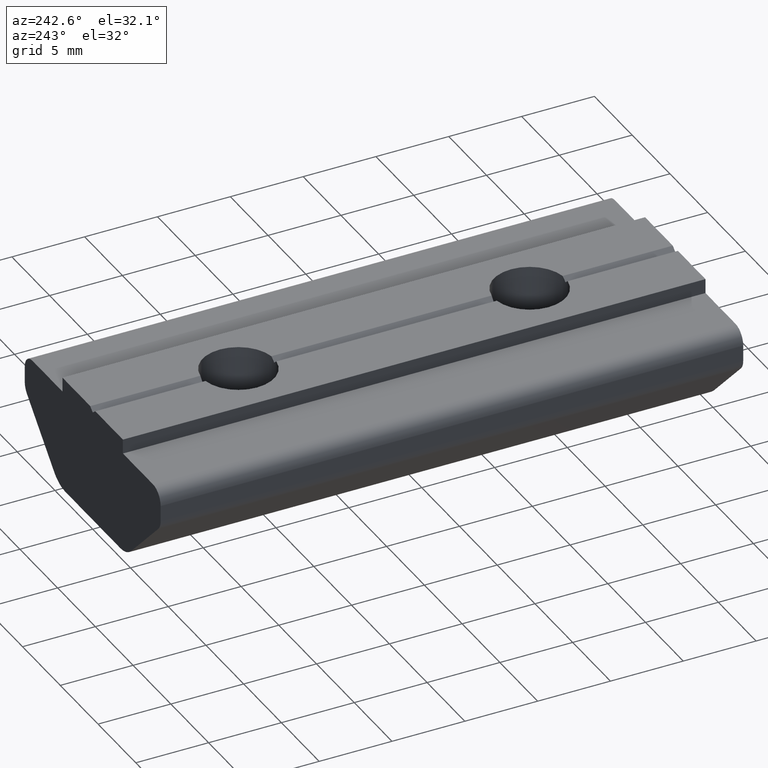
[diagram: clean part render]
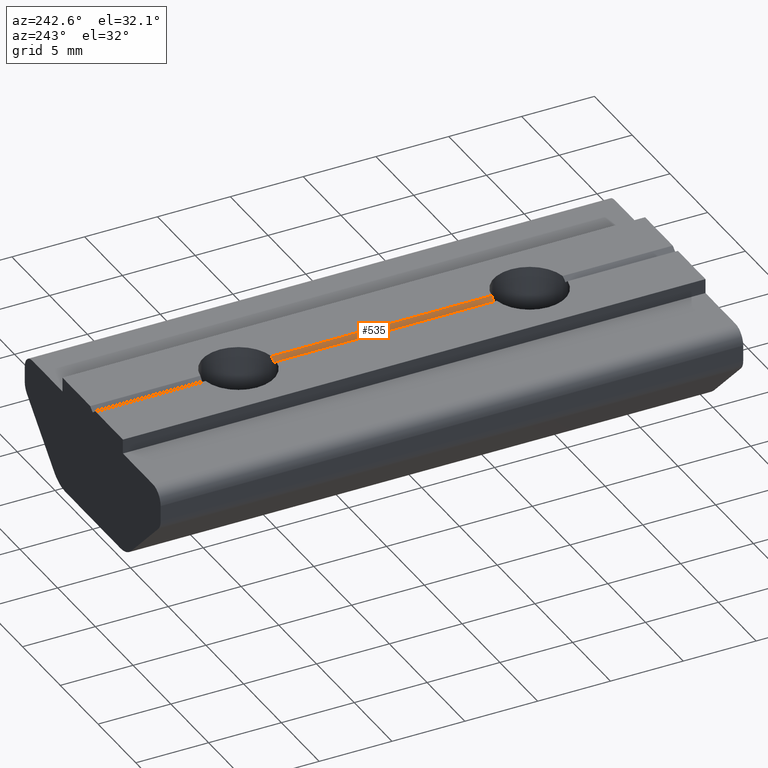
[diagram: same view with one face highlighted and labeled with its STEP entity id]
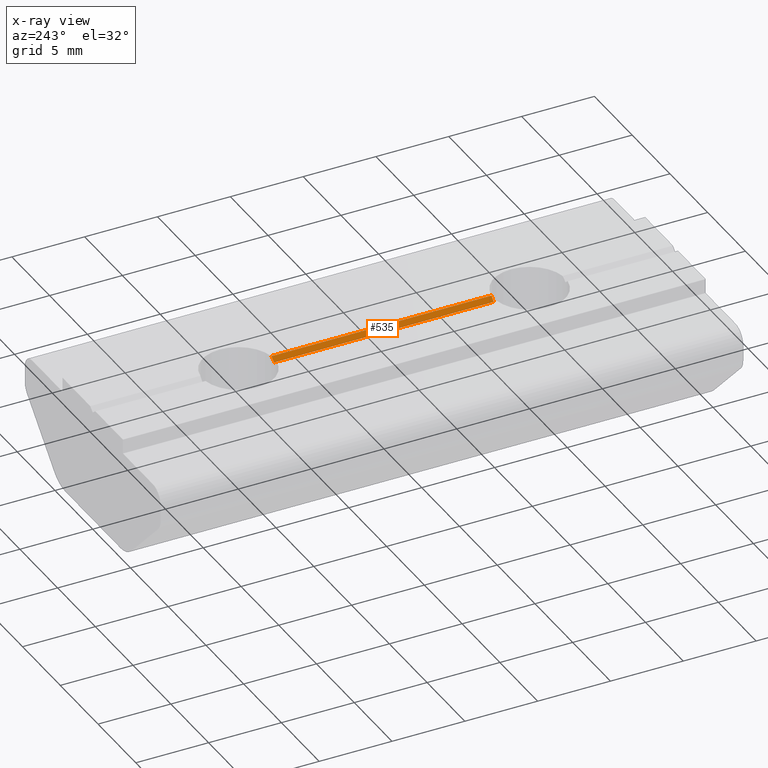
[diagram: x-ray of the same camera — body ghosted, the highlighted face saturated]
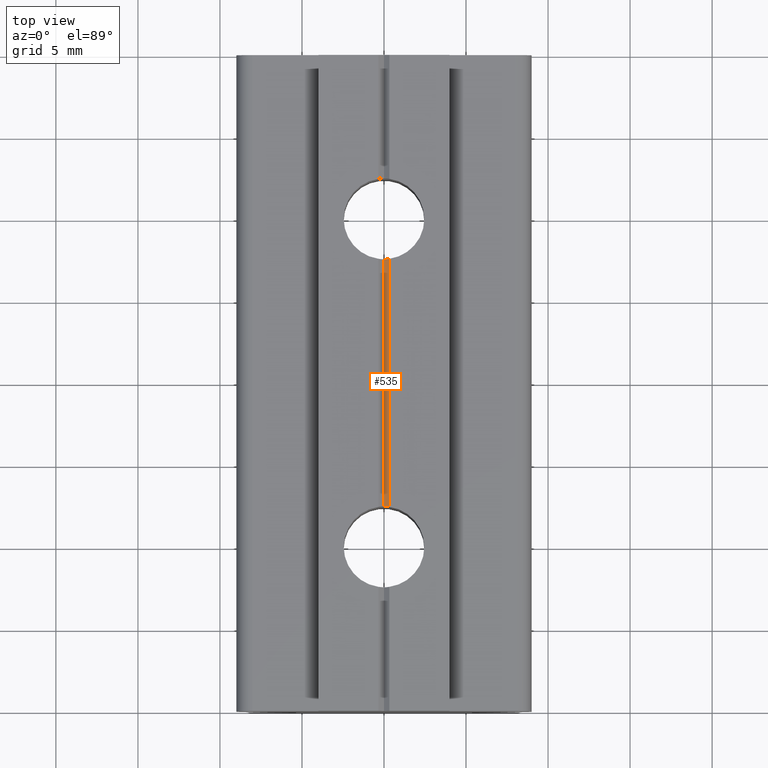
[diagram: same view with one face highlighted and labeled with its STEP entity id]
A machine part, auxiliary view. The second image highlights one B-rep face of the part: STEP entity #535.
The next image is the same camera in x-ray: the body ghosted, the highlighted face saturated — about 0% of this face is hidden behind the body in this view.
A second angle (top view) of the same face is appended — the face is thin or edge-on in the first view.
In plain terms, the highlighted planar face has unit normal (-0.6411, 0, 0.7675).
Its self-contained STEP definition (entity closure, byte-faithful):
#19=PLANE('',#601);
#40=FACE_OUTER_BOUND('',#67,.T.);
#67=EDGE_LOOP('',(#395,#396,#397,#398));
#100=LINE('',#850,#153);
#101=LINE('',#852,#154);
#153=VECTOR('',#686,15.);
#154=VECTOR('',#689,15.0433105967146);
#220=ELLIPSE('',#585,3.20333895379445,2.4585);
#223=ELLIPSE('',#592,3.20333895379445,2.4585);
#229=VERTEX_POINT('',#808);
#230=VERTEX_POINT('',#810);
#234=VERTEX_POINT('',#821);
#236=VERTEX_POINT('',#824);
#283=EDGE_CURVE('',#230,#229,#220,.T.);
#290=EDGE_CURVE('',#236,#234,#223,.T.);
#304=EDGE_CURVE('',#234,#230,#100,.T.);
#305=EDGE_CURVE('',#236,#229,#101,.T.);
#395=ORIENTED_EDGE('',*,*,#283,.T.);
#396=ORIENTED_EDGE('',*,*,#305,.F.);
#397=ORIENTED_EDGE('',*,*,#290,.T.);
#398=ORIENTED_EDGE('',*,*,#304,.T.);
#535=ADVANCED_FACE('',(#40),#19,.T.);
#585=AXIS2_PLACEMENT_3D('',#811,#646,#647);
#592=AXIS2_PLACEMENT_3D('',#825,#661,#662);
#601=AXIS2_PLACEMENT_3D('',#851,#687,#688);
#646=DIRECTION('center_axis',(0.641072358860515,-4.699462E-17,-0.767480443206871));
#647=DIRECTION('ref_axis',(0.767480443206871,0.,0.641072358860515));
#661=DIRECTION('center_axis',(0.641072358860515,-4.699462E-17,-0.767480443206871));
#662=DIRECTION('ref_axis',(0.767480443206871,0.,0.641072358860515));
#686=DIRECTION('',(0.,-1.,0.));
#687=DIRECTION('center_axis',(-0.641072358860515,4.699462E-17,0.767480443206871));
#688=DIRECTION('ref_axis',(0.767480443206871,0.,0.641072358860515));
#689=DIRECTION('',(0.,-1.,0.));
#808=CARTESIAN_POINT('',(0.328340585124039,2.43647587924863,7.99999822400002));
#810=CARTESIAN_POINT('',(8.015661E-9,2.4585,7.72573707488596));
#811=CARTESIAN_POINT('Origin',(0.,0.,7.72573706819052));
#821=CARTESIAN_POINT('',(8.015661E-9,17.5415,7.72573707488596));
#824=CARTESIAN_POINT('',(0.328340585124039,17.5635241207514,7.99999822400002));
#825=CARTESIAN_POINT('Origin',(0.,20.,7.72573706819051));
#850=CARTESIAN_POINT('',(8.015661E-9,17.5,7.72573707488596));
#851=CARTESIAN_POINT('Origin',(0.328340585124039,30.,7.99999822400002));
#852=CARTESIAN_POINT('',(0.328340585124039,17.5216552983573,7.99999822400002));